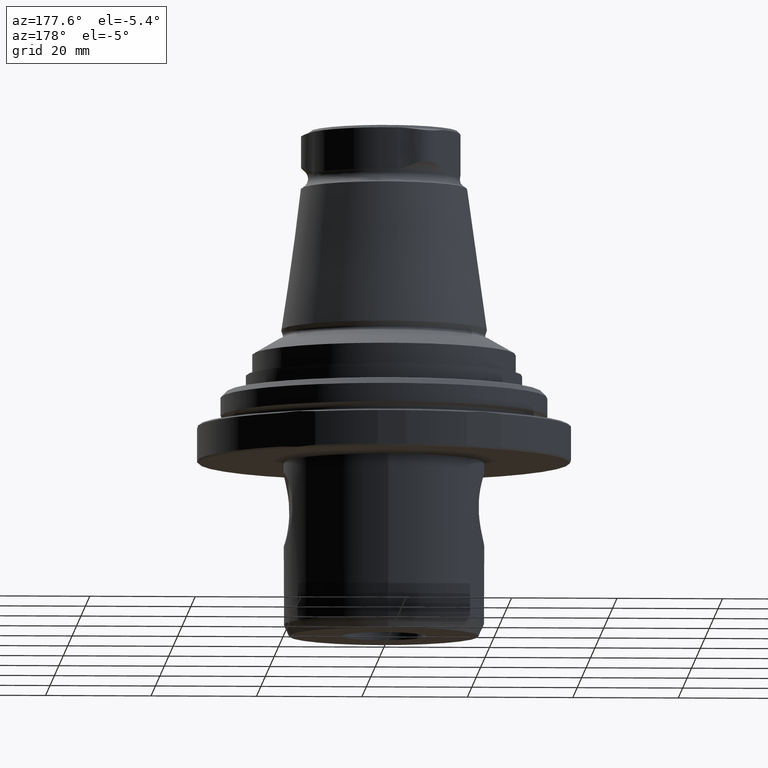
[diagram: clean part render]
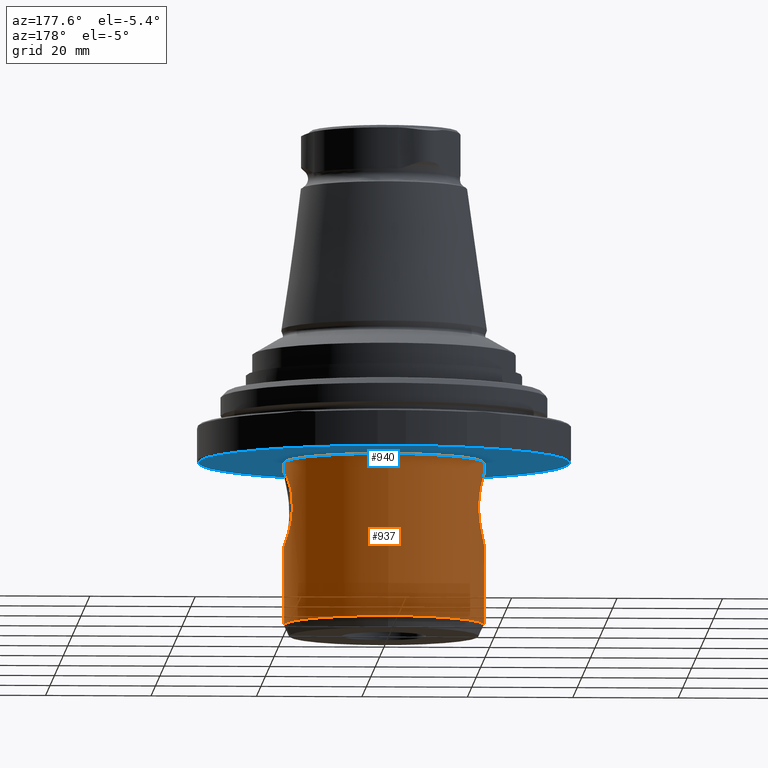
[diagram: same view with the hole feature highlighted: cylindrical wall and planar end face, labeled with their STEP entity ids]
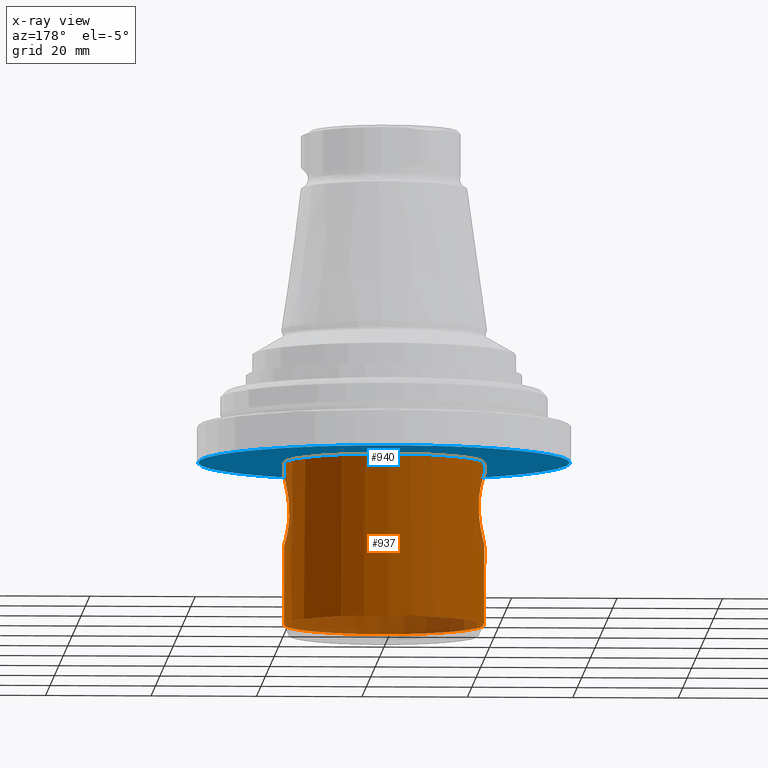
[diagram: x-ray of the same camera — body ghosted, the hole faces saturated]
A machine part, auxiliary view. The highlighted faces form one hole feature of diameter 38 mm: the cylindrical wall (entity #937, orange) and its adjacent planar end face (entity #940, blue) — they share a circular edge in the B-rep.
The next image is the same camera in x-ray (body ghosted, the hole faces saturated) — the bore reads through the body.
Wall:
#58=LINE('',#1471,#88);
#59=LINE('',#1483,#89);
#88=VECTOR('',#1157,1000.);
#89=VECTOR('',#1158,1000.);
#118=CIRCLE('',#1021,19.);
#119=CIRCLE('',#1022,19.);
#175=B_SPLINE_CURVE_WITH_KNOTS('',3,(#1436,#1437,#1438,#1439,#1440,#1441,
#1442,#1443,#1444),.UNSPECIFIED.,.F.,.F.,(4,1,1,1,1,1,4),(6.95916322035562E-15,
0.00519245764145362,0.00778868646217694,0.0103849152829003,0.0129811441036236,
0.0155773729243469,0.0207698305657936),.UNSPECIFIED.);
#176=B_SPLINE_CURVE_WITH_KNOTS('',3,(#1448,#1449,#1450,#1451,#1452,#1453,
#1454,#1455),.UNSPECIFIED.,.F.,.F.,(4,1,1,1,1,4),(1.74362962573013E-14,
0.0045340077302976,0.00906801546057776,0.0113350193257178,0.0136020231908579,
0.0181360309211381),.UNSPECIFIED.);
#177=B_SPLINE_CURVE_WITH_KNOTS('',3,(#1460,#1461,#1462,#1463,#1464,#1465,
#1466,#1467,#1468),.UNSPECIFIED.,.F.,.F.,(4,1,1,1,1,1,4),(1.2257196291475E-15,
0.00494918365953935,0.00742377548930841,0.00989836731907746,0.0123729591488465,
0.0148475509786156,0.0197967346381537),.UNSPECIFIED.);
#178=B_SPLINE_CURVE_WITH_KNOTS('',3,(#1473,#1474,#1475,#1476,#1477,#1478,
#1479,#1480,#1481),.UNSPECIFIED.,.F.,.F.,(4,1,1,1,1,1,4),(1.2257196291475E-15,
0.00494906524637124,0.00742359786955625,0.00989813049274126,0.0123726631159263,
0.0148471957391113,0.0197962609854813),.UNSPECIFIED.);
#219=ORIENTED_EDGE('',*,*,#485,.F.);
#220=ORIENTED_EDGE('',*,*,#486,.F.);
#221=ORIENTED_EDGE('',*,*,#487,.F.);
#222=ORIENTED_EDGE('',*,*,#488,.F.);
#223=ORIENTED_EDGE('',*,*,#489,.F.);
#224=ORIENTED_EDGE('',*,*,#490,.T.);
#225=ORIENTED_EDGE('',*,*,#491,.T.);
#226=ORIENTED_EDGE('',*,*,#492,.T.);
#227=ORIENTED_EDGE('',*,*,#493,.T.);
#228=ORIENTED_EDGE('',*,*,#494,.T.);
#485=EDGE_CURVE('',#618,#619,#713,.F.);
#486=EDGE_CURVE('',#620,#618,#175,.T.);
#487=EDGE_CURVE('',#621,#620,#714,.F.);
#488=EDGE_CURVE('',#619,#621,#176,.T.);
#489=EDGE_CURVE('',#622,#622,#118,.T.);
#490=EDGE_CURVE('',#623,#623,#119,.T.);
#491=EDGE_CURVE('',#624,#625,#177,.T.);
#492=EDGE_CURVE('',#625,#626,#58,.F.);
#493=EDGE_CURVE('',#626,#627,#178,.T.);
#494=EDGE_CURVE('',#627,#624,#59,.T.);
#618=VERTEX_POINT('',#1434);
#619=VERTEX_POINT('',#1435);
#620=VERTEX_POINT('',#1445);
#621=VERTEX_POINT('',#1447);
#622=VERTEX_POINT('',#1457);
#623=VERTEX_POINT('',#1459);
#624=VERTEX_POINT('',#1469);
#625=VERTEX_POINT('',#1470);
#626=VERTEX_POINT('',#1472);
#627=VERTEX_POINT('',#1482);
#713=ELLIPSE('',#1019,544.42045860903,19.);
#714=ELLIPSE('',#1020,544.42045860903,19.);
#715=EDGE_LOOP('',(#219,#220,#221,#222));
#716=EDGE_LOOP('',(#223));
#717=EDGE_LOOP('',(#224));
#718=EDGE_LOOP('',(#225,#226,#227,#228));
#811=FACE_BOUND('',#715,.T.);
#812=FACE_BOUND('',#716,.T.);
#813=FACE_BOUND('',#717,.T.);
#814=FACE_BOUND('',#718,.T.);
#907=CYLINDRICAL_SURFACE('',#1018,19.);
#937=ADVANCED_FACE('',(#811,#812,#813,#814),#907,.T.);
#1018=AXIS2_PLACEMENT_3D('',#1432,#1147,#1148);
#1019=AXIS2_PLACEMENT_3D('',#1433,#1149,#1150);
#1020=AXIS2_PLACEMENT_3D('',#1446,#1151,#1152);
#1021=AXIS2_PLACEMENT_3D('',#1456,#1153,#1154);
#1022=AXIS2_PLACEMENT_3D('',#1458,#1155,#1156);
#1147=DIRECTION('',(-5.47430718319515E-16,-8.51929311524195E-24,-1.));
#1148=DIRECTION('',(-6.38378239159465E-16,1.,-3.83055215771257E-23));
#1149=DIRECTION('',(-0.999390827019096,0.,0.0348994967025017));
#1150=DIRECTION('',(-0.0348994967025017,-8.52448600179034E-24,-0.999390827019096));
#1151=DIRECTION('',(-0.999390827019096,0.,0.0348994967025017));
#1152=DIRECTION('',(-0.0348994967025017,-8.52448600179034E-24,-0.999390827019096));
#1153=DIRECTION('',(-5.47430718319515E-16,-8.51929311524195E-24,-1.));
#1154=DIRECTION('',(-6.38378239159465E-16,1.,-3.83055215771257E-23));
#1155=DIRECTION('',(-4.38328612912168E-16,-8.51929322185263E-24,-1.));
#1156=DIRECTION('',(-1.,9.15933995315755E-16,4.38328610599545E-16));
#1157=DIRECTION('',(-5.47430718319515E-16,-8.51929311524195E-24,-1.));
#1158=DIRECTION('',(-5.47430718319515E-16,-8.51929311524195E-24,-1.));
#1432=CARTESIAN_POINT('',(-1.18946306511521E-13,-9.8164535560227E-14,-46.001110699893));
#1433=CARTESIAN_POINT('',(-3.80529440850897E-13,-9.8164539631068E-14,-523.838991523197));
#1434=CARTESIAN_POINT('',(17.6768447006594,6.96628749254321,-17.640389432349));
#1435=CARTESIAN_POINT('',(17.7679099695555,6.73062963724539,-15.0326213269646));
#1436=CARTESIAN_POINT('',(17.6768447006592,-6.96628749254255,-17.6403894323551));
#1437=CARTESIAN_POINT('',(17.7445540058037,-6.79447619806033,-19.3881006685375));
#1438=CARTESIAN_POINT('',(18.2584270770526,-5.5550767498255,-21.8101939659477));
#1439=CARTESIAN_POINT('',(18.8749455129835,-2.60807652548236,-23.6682852364059));
#1440=CARTESIAN_POINT('',(19.0622849834152,-0.0050020653086476,-24.1715766561832));
#1441=CARTESIAN_POINT('',(18.8759117788549,2.60293352323707,-23.6710013671468));
#1442=CARTESIAN_POINT('',(18.2587332863859,5.55469716307206,-21.8117044388245));
#1443=CARTESIAN_POINT('',(17.7445633835365,6.79445240221235,-19.3883427264388));
#1444=CARTESIAN_POINT('',(17.6768447006588,6.96628749254489,-17.6403894323314));
#1445=CARTESIAN_POINT('',(17.6768447006594,-6.96628749254333,-17.6403894323481));
#1446=CARTESIAN_POINT('',(-3.80529440850897E-13,-9.8164539631068E-14,-523.838991523197));
#1447=CARTESIAN_POINT('',(17.7679099695554,-6.73062963724566,-15.0326213269654));
#1448=CARTESIAN_POINT('',(17.7679099695549,6.73062963725024,-15.0326213269817));
#1449=CARTESIAN_POINT('',(17.9271919354724,6.31014778299188,-13.5657101647735));
#1450=CARTESIAN_POINT('',(18.5867183021939,4.53417580807515,-11.0158442663343));
#1451=CARTESIAN_POINT('',(19.0981781063831,0.771900708951924,-9.74608291042822));
#1452=CARTESIAN_POINT('',(18.905930272324,-2.27127173895207,-10.2410961582766));
#1453=CARTESIAN_POINT('',(18.4177066224448,-4.96714330202065,-11.6502759644414));
#1454=CARTESIAN_POINT('',(17.9271725361345,-6.31019899449596,-13.5658888234579));
#1455=CARTESIAN_POINT('',(17.7679099695562,-6.7306296372437,-15.0326213269589));
#1456=CARTESIAN_POINT('',(-1.15034575924747E-13,-9.81645354993514E-14,-38.8554930794905));
#1457=CARTESIAN_POINT('',(-1.27163762468777E-13,18.9999999999999,-38.8554930794905));
#1458=CARTESIAN_POINT('',(-9.8143331184139E-14,-9.81645352364844E-14,-7.99999999999998));
#1459=CARTESIAN_POINT('',(-19.0000000000001,-8.07617893254851E-14,-7.99999999999997));
#1460=CARTESIAN_POINT('',(-17.7000000000001,-6.9072425757318,-18.1357816691605));
#1461=CARTESIAN_POINT('',(-17.8058457321467,-6.63600996178291,-19.7852795523051));
#1462=CARTESIAN_POINT('',(-18.3167176408525,-5.34934042600728,-22.015850838505));
#1463=CARTESIAN_POINT('',(-18.8866504465139,-2.48860289428585,-23.6993114665873));
#1464=CARTESIAN_POINT('',(-19.056516045664,-0.0029400490316078,-24.1498914785266));
#1465=CARTESIAN_POINT('',(-18.8872843568357,2.48515812793601,-23.7011198670349));
#1466=CARTESIAN_POINT('',(-18.3164432517262,5.35097586811524,-22.0151270580282));
#1467=CARTESIAN_POINT('',(-17.8058480273395,6.63600408028775,-19.7853153205455));
#1468=CARTESIAN_POINT('',(-17.7000000000001,6.9072425757316,-18.1357816691617));
#1469=CARTESIAN_POINT('',(-17.7000000000001,-6.9072425757318,-18.1357816691592));
#1470=CARTESIAN_POINT('',(-17.7000000000001,6.9072425757316,-18.1357816691603));
#1471=CARTESIAN_POINT('',(-17.7000000000001,6.9072425757316,-46.001110699893));
#1472=CARTESIAN_POINT('',(-17.7000000000001,6.9072425757316,-15.8642183308396));
#1473=CARTESIAN_POINT('',(-17.7000000000001,6.9072425757316,-15.8642183308383));
#1474=CARTESIAN_POINT('',(-17.8058431997032,6.63601645123914,-14.2147599132467));
#1475=CARTESIAN_POINT('',(-18.31667670055,5.34979156711841,-11.9842774767041));
#1476=CARTESIAN_POINT('',(-18.8866536082406,2.48811677631565,-10.3006897276898));
#1477=CARTESIAN_POINT('',(-19.0564044087325,0.00566647900581211,-9.85037726809924));
#1478=CARTESIAN_POINT('',(-18.8877250149613,-2.48157402810434,-10.2978113564138));
#1479=CARTESIAN_POINT('',(-18.3176963405216,-5.34695829470239,-11.9802350133417));
#1480=CARTESIAN_POINT('',(-17.805836865908,-6.63603268176447,-14.2148586189897));
#1481=CARTESIAN_POINT('',(-17.7000000000001,-6.9072425757318,-15.8642183308395));
#1482=CARTESIAN_POINT('',(-17.7000000000001,-6.9072425757318,-15.8642183308408));
#1483=CARTESIAN_POINT('',(-17.7000000000001,-6.9072425757318,-46.001110699893));
End face:
#42=PLANE('',#1027);
#119=CIRCLE('',#1022,19.);
#122=CIRCLE('',#1028,35.2);
#233=ORIENTED_EDGE('',*,*,#490,.F.);
#234=ORIENTED_EDGE('',*,*,#497,.T.);
#490=EDGE_CURVE('',#623,#623,#119,.T.);
#497=EDGE_CURVE('',#630,#630,#122,.T.);
#623=VERTEX_POINT('',#1459);
#630=VERTEX_POINT('',#1492);
#723=EDGE_LOOP('',(#233));
#724=EDGE_LOOP('',(#234));
#819=FACE_BOUND('',#723,.T.);
#820=FACE_BOUND('',#724,.T.);
#940=ADVANCED_FACE('',(#819,#820),#42,.T.);
#1022=AXIS2_PLACEMENT_3D('',#1458,#1155,#1156);
#1027=AXIS2_PLACEMENT_3D('',#1490,#1167,#1168);
#1028=AXIS2_PLACEMENT_3D('',#1491,#1169,#1170);
#1155=DIRECTION('',(-4.38328612912168E-16,-8.51929322185263E-24,-1.));
#1156=DIRECTION('',(-1.,9.15933995315755E-16,4.38328610599545E-16));
#1167=DIRECTION('',(-4.38328612912168E-16,-8.51929322185263E-24,-1.));
#1168=DIRECTION('',(-1.,9.77164313006873E-16,4.38328610599545E-16));
#1169=DIRECTION('',(-5.47430718319515E-16,-9.52839907700963E-18,-1.));
#1170=DIRECTION('',(-1.,8.32667268468868E-16,5.47430716006892E-16));
#1458=CARTESIAN_POINT('',(-9.8143331184139E-14,-9.81645352364844E-14,-7.99999999999998));
#1459=CARTESIAN_POINT('',(-19.0000000000001,-8.07617893254851E-14,-7.99999999999997));
#1490=CARTESIAN_POINT('',(-26.5000000000001,-7.22696809418023E-14,-7.99999999999997));
#1491=CARTESIAN_POINT('',(-9.20337344609681E-14,-9.82312339688156E-14,-7.99999999999999));
#1492=CARTESIAN_POINT('',(-35.2000000000001,-6.89213461187114E-14,-7.99999999999997));